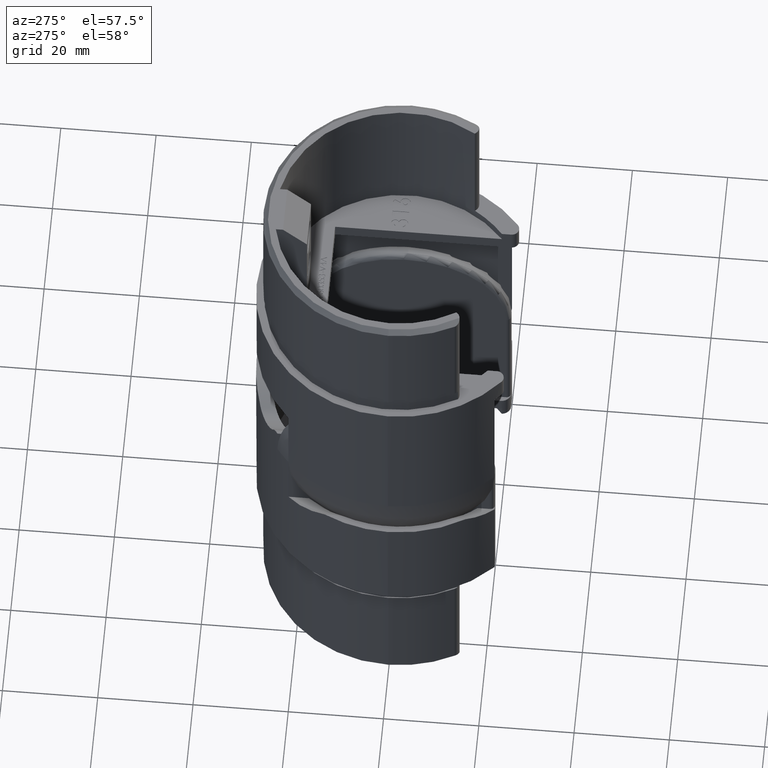
[diagram: clean part render]
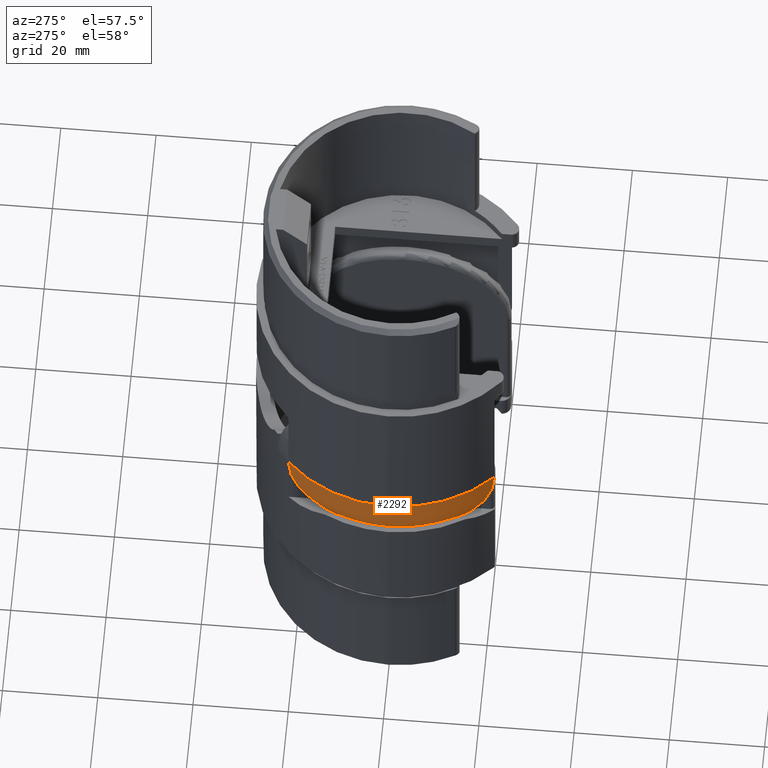
[diagram: same view with one face highlighted and labeled with its STEP entity id]
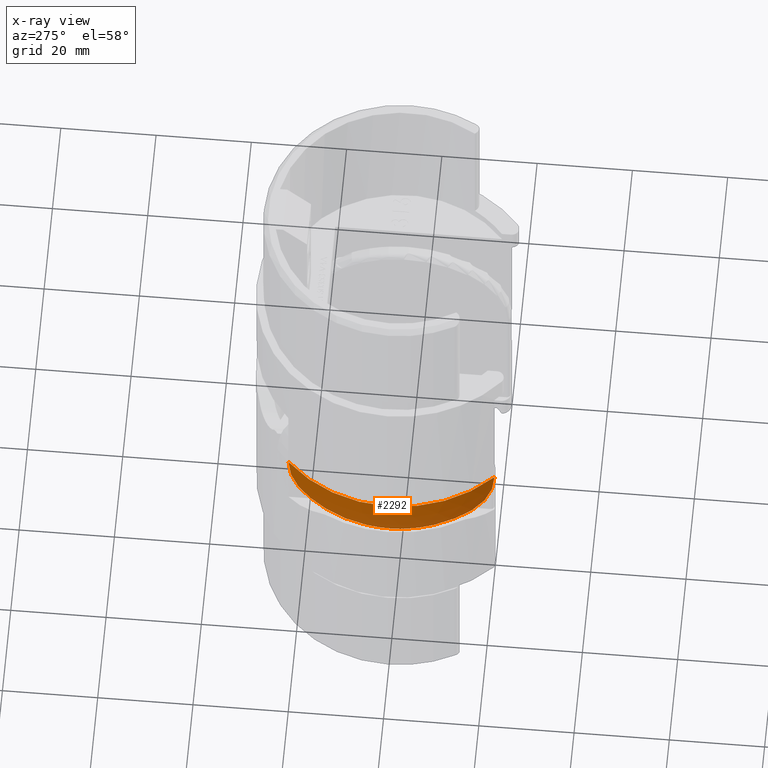
[diagram: x-ray of the same camera — body ghosted, the highlighted face saturated]
A machine part, auxiliary view. The second image highlights one B-rep face of the part: STEP entity #2292.
The next image is the same camera in x-ray: the body ghosted, the highlighted face saturated — about 0% of this face is hidden behind the body in this view.
In plain terms, the highlighted spherical surface has radius 30.15 mm.
Its self-contained STEP definition (entity closure, byte-faithful):
#1168 = DIRECTION ( 'NONE',  ( 3.452186021844392414E-15, 0.000000000000000000, -1.000000000000000000 ) ) ;
#1954 = DIRECTION ( 'NONE',  ( -2.245199418724105428E-15, 1.000000000000000000, 0.000000000000000000 ) ) ;
#2292 = ADVANCED_FACE ( 'NONE', ( #8892 ), #26697, .T. ) ;
#2617 = CARTESIAN_POINT ( 'NONE',  ( -20.99999999999999289, -21.63382767796766615, -33.00000000000008527 ) ) ;
#4001 = AXIS2_PLACEMENT_3D ( 'NONE', #26308, #10080, #9873 ) ;
#5422 = ORIENTED_EDGE ( 'NONE', *, *, #5450, .F. ) ;
#5450 = EDGE_CURVE ( 'NONE', #22626, #21487, #21893, .T. ) ;
#7388 = VERTEX_POINT ( 'NONE', #2617 ) ;
#8806 = CARTESIAN_POINT ( 'NONE',  ( 0.000000000000000000, 0.000000000000000000, -33.00000000000000711 ) ) ;
#8892 = FACE_OUTER_BOUND ( 'NONE', #23538, .T. ) ;
#8982 = ORIENTED_EDGE ( 'NONE', *, *, #11508, .F. ) ;
#9309 = ORIENTED_EDGE ( 'NONE', *, *, #12701, .F. ) ;
#9873 = DIRECTION ( 'NONE',  ( 1.000000000000000000, 0.000000000000000000, 3.452186021844392809E-15 ) ) ;
#10080 = DIRECTION ( 'NONE',  ( -3.491481338843133355E-15, 0.000000000000000000, 1.000000000000000000 ) ) ;
#11066 = CIRCLE ( 'NONE', #25874, 30.14999999999999503 ) ;
#11508 = EDGE_CURVE ( 'NONE', #7388, #22626, #29972, .T. ) ;
#12701 = EDGE_CURVE ( 'NONE', #21487, #7388, #11066, .T. ) ;
#12881 = DIRECTION ( 'NONE',  ( 1.000000000000000000, 0.000000000000000000, 3.452186021844392414E-15 ) ) ;
#13437 = CARTESIAN_POINT ( 'NONE',  ( -30.14999999999999503, 3.692310099429270397E-15, -33.00000000000011369 ) ) ;
#15097 = CARTESIAN_POINT ( 'NONE',  ( -21.00000000000000000, 21.63382767796767325, -33.00000000000000711 ) ) ;
#15458 = DIRECTION ( 'NONE',  ( -3.491481338843133355E-15, 0.000000000000000000, 1.000000000000000000 ) ) ;
#16114 = DIRECTION ( 'NONE',  ( 1.000000000000000000, 2.195650694278734579E-15, -0.000000000000000000 ) ) ;
#18463 = CARTESIAN_POINT ( 'NONE',  ( -20.99999999999995381, -4.610866457985331217E-14, -33.00000000000000711 ) ) ;
#21487 = VERTEX_POINT ( 'NONE', #13437 ) ;
#21893 = CIRCLE ( 'NONE', #4001, 30.14999999999999503 ) ;
#22626 = VERTEX_POINT ( 'NONE', #15097 ) ;
#23538 = EDGE_LOOP ( 'NONE', ( #8982, #9309, #5422 ) ) ;
#25874 = AXIS2_PLACEMENT_3D ( 'NONE', #8806, #15458, #29530 ) ;
#26308 = CARTESIAN_POINT ( 'NONE',  ( 0.000000000000000000, 0.000000000000000000, -33.00000000000000711 ) ) ;
#26697 = SPHERICAL_SURFACE ( 'NONE', #27336, 30.14999999999999858 ) ;
#26765 = CARTESIAN_POINT ( 'NONE',  ( -6.938893903907228378E-15, 0.000000000000000000, -33.00000000000000711 ) ) ;
#26845 = AXIS2_PLACEMENT_3D ( 'NONE', #18463, #16114, #1954 ) ;
#27336 = AXIS2_PLACEMENT_3D ( 'NONE', #26765, #1168, #12881 ) ;
#29530 = DIRECTION ( 'NONE',  ( 1.000000000000000000, 0.000000000000000000, 3.452186021844392809E-15 ) ) ;
#29972 = CIRCLE ( 'NONE', #26845, 21.63382767796772299 ) ;